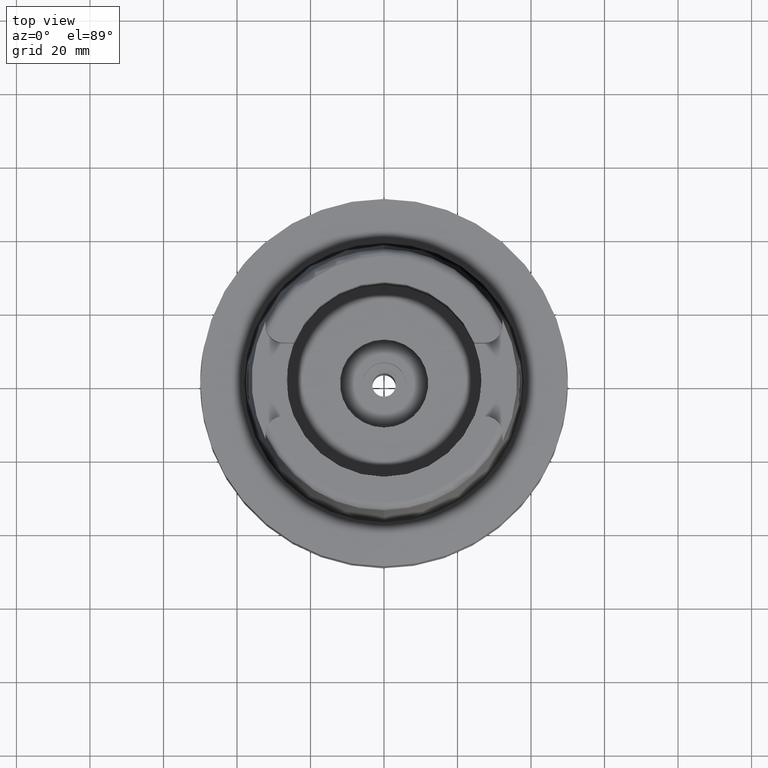
[diagram: clean part render]
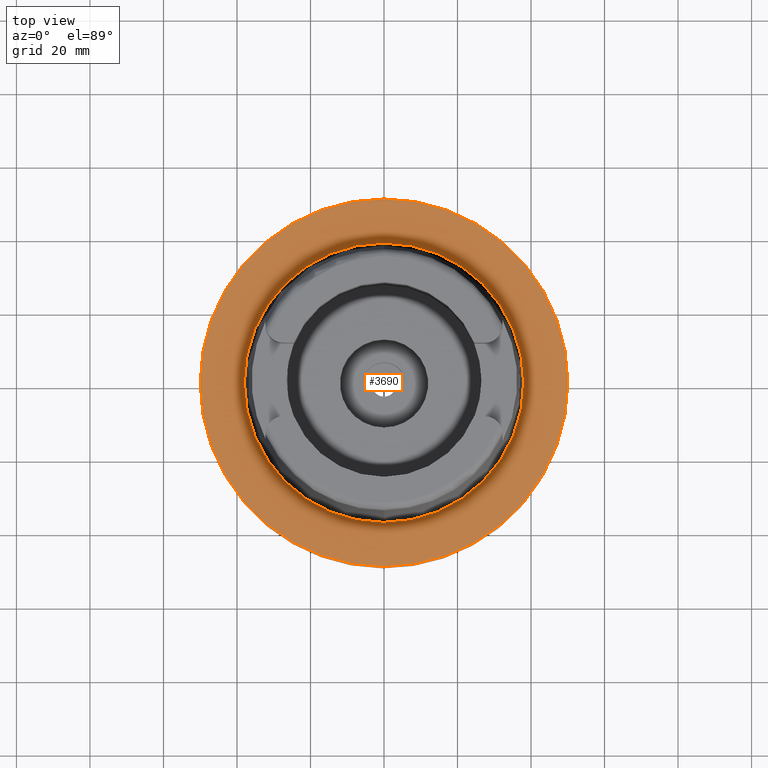
[diagram: same view with one face highlighted and labeled with its STEP entity id]
A machine part, top view. The second image highlights one B-rep face of the part: STEP entity #3690.
In plain terms, the highlighted planar face has unit normal (0, 0, 1).
Its self-contained STEP definition (entity closure, byte-faithful):
#206 = EDGE_LOOP ( 'NONE', ( #4330, #4176 ) ) ;
#256 = DIRECTION ( 'NONE',  ( 0.0000000000000000000, 0.0000000000000000000, 1.000000000000000000 ) ) ;
#295 = CARTESIAN_POINT ( 'NONE',  ( 0.0000000000000000000, 0.0000000000000000000, 1.023181539494999863E-12 ) ) ;
#378 = FACE_BOUND ( 'NONE', #3821, .T. ) ;
#609 = CARTESIAN_POINT ( 'NONE',  ( 0.0000000000000000000, 38.00001658251999714, 1.023181539494999863E-12 ) ) ;
#610 = VERTEX_POINT ( 'NONE', #3542 ) ;
#750 = AXIS2_PLACEMENT_3D ( 'NONE', #4570, #5534, #1696 ) ;
#841 = CIRCLE ( 'NONE', #750, 50.00000000000000000 ) ;
#845 = CARTESIAN_POINT ( 'NONE',  ( 0.0000000000000000000, 0.0000000000000000000, 1.421085471519999843E-14 ) ) ;
#1041 = EDGE_CURVE ( 'NONE', #610, #1346, #1825, .T. ) ;
#1346 = VERTEX_POINT ( 'NONE', #609 ) ;
#1551 = DIRECTION ( 'NONE',  ( 0.0000000000000000000, 1.000000000000000000, 0.0000000000000000000 ) ) ;
#1696 = DIRECTION ( 'NONE',  ( 0.0000000000000000000, -1.000000000000000000, 0.0000000000000000000 ) ) ;
#1770 = DIRECTION ( 'NONE',  ( 0.0000000000000000000, 0.0000000000000000000, -1.000000000000000000 ) ) ;
#1825 = CIRCLE ( 'NONE', #2640, 38.00001658251999714 ) ;
#1926 = EDGE_CURVE ( 'NONE', #1346, #610, #2339, .T. ) ;
#2181 = DIRECTION ( 'NONE',  ( 0.0000000000000000000, 0.0000000000000000000, 1.000000000000000000 ) ) ;
#2339 = CIRCLE ( 'NONE', #5260, 38.00001658251999714 ) ;
#2400 = CARTESIAN_POINT ( 'NONE',  ( 0.0000000000000000000, 0.0000000000000000000, 0.0000000000000000000 ) ) ;
#2552 = CARTESIAN_POINT ( 'NONE',  ( 0.0000000000000000000, 0.0000000000000000000, 1.023181539494999863E-12 ) ) ;
#2629 = ORIENTED_EDGE ( 'NONE', *, *, #1926, .F. ) ;
#2640 = AXIS2_PLACEMENT_3D ( 'NONE', #295, #2181, #5926 ) ;
#2770 = DIRECTION ( 'NONE',  ( 1.000000000000000000, 0.0000000000000000000, 0.0000000000000000000 ) ) ;
#2807 = EDGE_CURVE ( 'NONE', #3212, #5906, #3753, .T. ) ;
#2866 = AXIS2_PLACEMENT_3D ( 'NONE', #845, #6101, #2770 ) ;
#3212 = VERTEX_POINT ( 'NONE', #3813 ) ;
#3542 = CARTESIAN_POINT ( 'NONE',  ( 0.0000000000000000000, -38.00001658251999714, 6.892264536873000076E-13 ) ) ;
#3559 = AXIS2_PLACEMENT_3D ( 'NONE', #2400, #1770, #1551 ) ;
#3690 = ADVANCED_FACE ( 'NONE', ( #5162, #378 ), #4218, .T. ) ;
#3753 = CIRCLE ( 'NONE', #3559, 50.00000000000000000 ) ;
#3813 = CARTESIAN_POINT ( 'NONE',  ( 0.0000000000000000000, 50.00000000000000000, 0.0000000000000000000 ) ) ;
#3821 = EDGE_LOOP ( 'NONE', ( #2629, #6121 ) ) ;
#4176 = ORIENTED_EDGE ( 'NONE', *, *, #4597, .F. ) ;
#4218 = PLANE ( 'NONE',  #2866 ) ;
#4330 = ORIENTED_EDGE ( 'NONE', *, *, #2807, .F. ) ;
#4570 = CARTESIAN_POINT ( 'NONE',  ( 0.0000000000000000000, 0.0000000000000000000, 0.0000000000000000000 ) ) ;
#4597 = EDGE_CURVE ( 'NONE', #5906, #3212, #841, .T. ) ;
#4793 = CARTESIAN_POINT ( 'NONE',  ( 0.0000000000000000000, -50.00000000000000000, 0.0000000000000000000 ) ) ;
#5008 = DIRECTION ( 'NONE',  ( 0.0000000000000000000, 1.000000000000000000, 0.0000000000000000000 ) ) ;
#5162 = FACE_OUTER_BOUND ( 'NONE', #206, .T. ) ;
#5260 = AXIS2_PLACEMENT_3D ( 'NONE', #2552, #256, #5008 ) ;
#5534 = DIRECTION ( 'NONE',  ( 0.0000000000000000000, 0.0000000000000000000, -1.000000000000000000 ) ) ;
#5906 = VERTEX_POINT ( 'NONE', #4793 ) ;
#5926 = DIRECTION ( 'NONE',  ( 0.0000000000000000000, -1.000000000000000000, 0.0000000000000000000 ) ) ;
#6101 = DIRECTION ( 'NONE',  ( 0.0000000000000000000, 0.0000000000000000000, 1.000000000000000000 ) ) ;
#6121 = ORIENTED_EDGE ( 'NONE', *, *, #1041, .F. ) ;